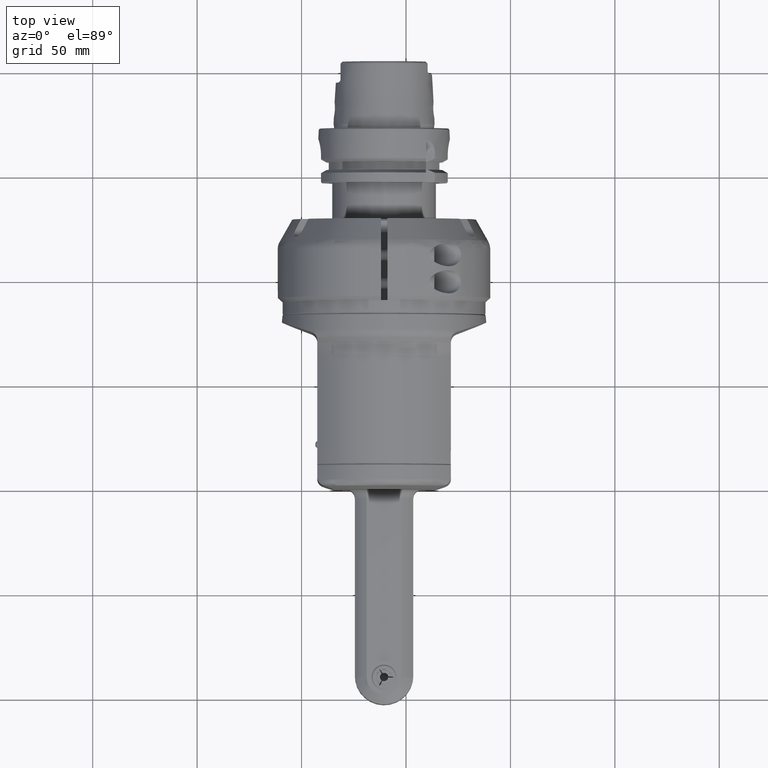
[diagram: clean part render]
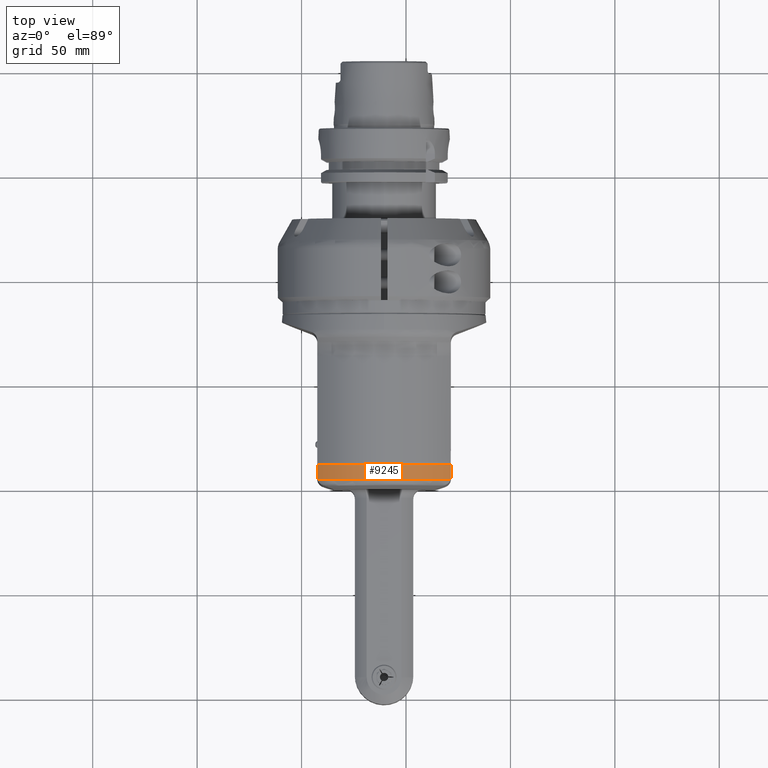
[diagram: same view with one face highlighted and labeled with its STEP entity id]
A machine part, top view. The second image highlights one B-rep face of the part: STEP entity #9245.
In plain terms, the highlighted cylindrical surface (partial cylindrical patch) has radius 42.5 mm, axis along (0, -1, -0).
Its self-contained STEP definition (entity closure, byte-faithful):
#1055=FACE_OUTER_BOUND('',#1646,.T.);
#1646=EDGE_LOOP('',(#8113,#8114,#8115,#8116,#8117,#8118));
#2119=CIRCLE('',#10196,42.5);
#2120=CIRCLE('',#10197,42.5);
#2337=B_SPLINE_CURVE_WITH_KNOTS('',3,(#46444,#46445,#46446,#46447,#46448,
#46449),.UNSPECIFIED.,.F.,.F.,(4,2,4),(-2.83702620331015,-2.76135709428264,
-2.71600816543477),.UNSPECIFIED.);
#2338=B_SPLINE_CURVE_WITH_KNOTS('',3,(#46454,#46455,#46456,#46457,#46458,
#46459),.UNSPECIFIED.,.F.,.F.,(4,2,4),(1.29749506379827,1.34284399262756,
1.41851310165508),.UNSPECIFIED.);
#2825=LINE('',#46104,#3472);
#2853=LINE('',#46399,#3500);
#3472=VECTOR('',#12257,5.79108067422501);
#3500=VECTOR('',#12423,5.791081086278);
#4327=VERTEX_POINT('',#46101);
#4328=VERTEX_POINT('',#46103);
#4387=VERTEX_POINT('',#46394);
#4388=VERTEX_POINT('',#46398);
#4394=VERTEX_POINT('',#46433);
#4395=VERTEX_POINT('',#46452);
#5571=EDGE_CURVE('',#4328,#4327,#2825,.T.);
#5658=EDGE_CURVE('',#4388,#4387,#2853,.T.);
#5667=EDGE_CURVE('',#4327,#4394,#2337,.T.);
#5668=EDGE_CURVE('',#4328,#4387,#2119,.T.);
#5669=EDGE_CURVE('',#4395,#4394,#2120,.T.);
#5670=EDGE_CURVE('',#4395,#4388,#2338,.T.);
#8113=ORIENTED_EDGE('',*,*,#5658,.T.);
#8114=ORIENTED_EDGE('',*,*,#5668,.F.);
#8115=ORIENTED_EDGE('',*,*,#5571,.T.);
#8116=ORIENTED_EDGE('',*,*,#5667,.T.);
#8117=ORIENTED_EDGE('',*,*,#5669,.F.);
#8118=ORIENTED_EDGE('',*,*,#5670,.T.);
#8789=CYLINDRICAL_SURFACE('',#10195,42.5);
#9245=ADVANCED_FACE('',(#1055),#8789,.T.);
#10195=AXIS2_PLACEMENT_3D('',#46450,#12433,#12434);
#10196=AXIS2_PLACEMENT_3D('',#46451,#12435,#12436);
#10197=AXIS2_PLACEMENT_3D('',#46453,#12437,#12438);
#12257=DIRECTION('',(0.999999999999999,-3.075112502425E-8,2.687718367915E-8));
#12423=DIRECTION('',(-1.,0.,0.));
#12433=DIRECTION('center_axis',(1.,0.,0.));
#12434=DIRECTION('ref_axis',(0.,-1.,0.));
#12435=DIRECTION('center_axis',(-1.,0.,0.));
#12436=DIRECTION('ref_axis',(0.,-1.,0.));
#12437=DIRECTION('center_axis',(1.,0.,0.));
#12438=DIRECTION('ref_axis',(0.,-1.,0.));
#46101=CARTESIAN_POINT('',(75.29108108628,-27.96873254189,-32.));
#46103=CARTESIAN_POINT('',(69.5000000412251,-27.9687323282249,-32.0000002221204));
#46104=CARTESIAN_POINT('',(69.50000041205,-27.96873236381,-32.00000015565));
#46394=CARTESIAN_POINT('',(69.5,-27.96873254189,32.));
#46398=CARTESIAN_POINT('',(75.29108108628,-27.96873254189,32.));
#46399=CARTESIAN_POINT('',(75.29108108628,-27.96873254189,32.));
#46433=CARTESIAN_POINT('',(76.48270110647,-28.17517633762,-31.81838208244));
#46444=CARTESIAN_POINT('Ctrl Pts',(75.29108108628,-27.968732541894,-32.));
#46445=CARTESIAN_POINT('Ctrl Pts',(75.5433114497051,-27.968732541894,-32.));
#46446=CARTESIAN_POINT('Ctrl Pts',(75.7979632324274,-27.9965182509185,-31.9757747892837));
#46447=CARTESIAN_POINT('Ctrl Pts',(76.1944045138442,-28.0832209934572,-31.8996013926786));
#46448=CARTESIAN_POINT('Ctrl Pts',(76.3405886984694,-28.125092009071,-31.8627317537999));
#46449=CARTESIAN_POINT('Ctrl Pts',(76.4827011064694,-28.1751763376201,-31.818382082438));
#46450=CARTESIAN_POINT('Origin',(22.25229287192,0.,0.));
#46451=CARTESIAN_POINT('Origin',(69.5,0.,0.));
#46452=CARTESIAN_POINT('',(76.48270110629,-28.17517633757,31.81838208249));
#46453=CARTESIAN_POINT('Origin',(76.48270110647,0.,0.));
#46454=CARTESIAN_POINT('Ctrl Pts',(76.4827011062948,-28.1751763375585,31.8183820824925));
#46455=CARTESIAN_POINT('Ctrl Pts',(76.3405886983497,-28.1250920090367,31.8627317538301));
#46456=CARTESIAN_POINT('Ctrl Pts',(76.1944045137834,-28.0832209934439,31.8996013926902));
#46457=CARTESIAN_POINT('Ctrl Pts',(75.7979632324274,-27.9965182509185,31.9757747892837));
#46458=CARTESIAN_POINT('Ctrl Pts',(75.543311449705,-27.968732541894,32.));
#46459=CARTESIAN_POINT('Ctrl Pts',(75.29108108628,-27.968732541894,32.));